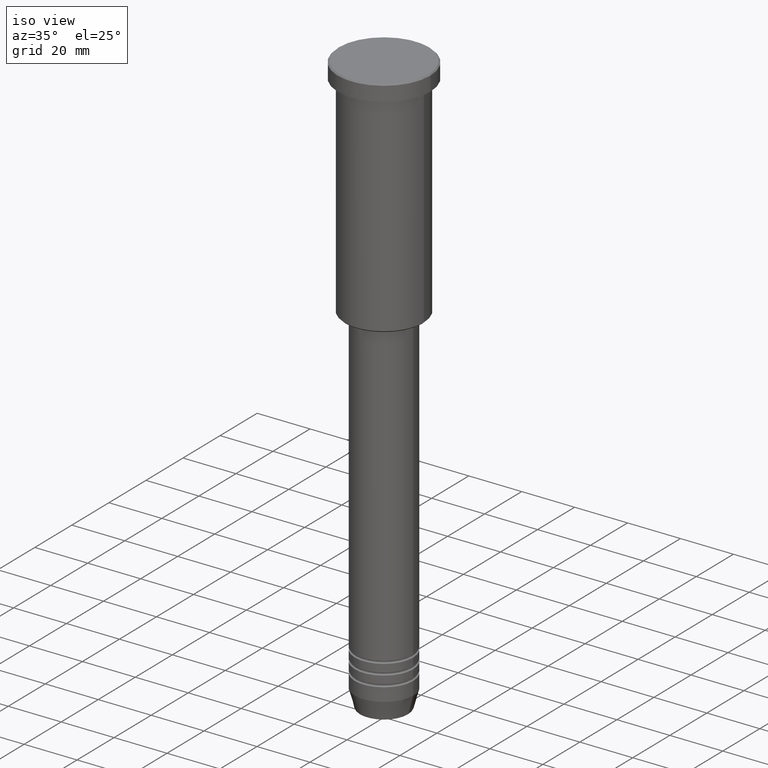
[diagram: clean part render]
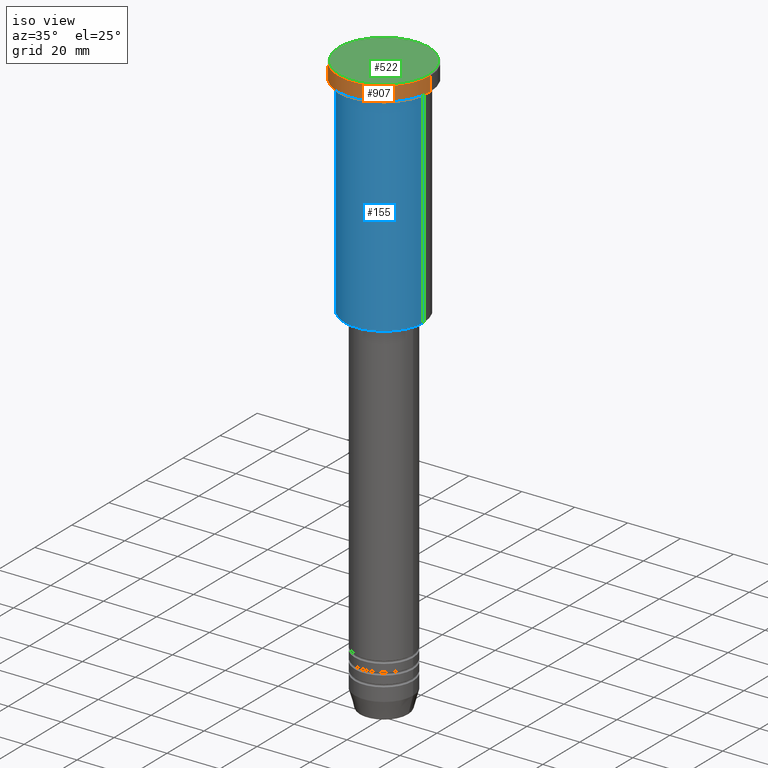
[diagram: same view with three faces highlighted in distinct colors, each labeled with its STEP entity id]
A machine part, iso view with three faces highlighted in distinct colors.
Their STEP definitions:

[orange] entity #907 — the highlighted cylindrical surface (partial cylindrical patch) has radius 17.5 mm, axis along (-0, -0, 1).
#3 = DIRECTION ( 'NONE',  ( 0.000000000000000000, 0.000000000000000000, -1.000000000000000000 ) ) ;
#40 = ORIENTED_EDGE ( 'NONE', *, *, #167, .T. ) ;
#41 = CARTESIAN_POINT ( 'NONE',  ( 17.50000000000000000, 0.000000000000000000, 0.000000000000000000 ) ) ;
#64 = CARTESIAN_POINT ( 'NONE',  ( 0.000000000000000000, 0.000000000000000000, -0.5000000000000280886 ) ) ;
#70 = FACE_OUTER_BOUND ( 'NONE', #229, .T. ) ;
#77 = DIRECTION ( 'NONE',  ( -0.000000000000000000, -0.000000000000000000, 1.000000000000000000 ) ) ;
#163 = DIRECTION ( 'NONE',  ( 1.000000000000000000, 0.000000000000000000, 0.000000000000000000 ) ) ;
#167 = EDGE_CURVE ( 'NONE', #422, #358, #501, .T. ) ;
#173 = CARTESIAN_POINT ( 'NONE',  ( -17.50000000000000000, 2.143131898507868248E-15, 0.000000000000000000 ) ) ;
#209 = CARTESIAN_POINT ( 'NONE',  ( -17.50000000000000000, 2.143131898507868248E-15, -5.999999999999995559 ) ) ;
#229 = EDGE_LOOP ( 'NONE', ( #1045, #681, #40, #406 ) ) ;
#336 = CIRCLE ( 'NONE', #1120, 17.50000000000000000 ) ;
#358 = VERTEX_POINT ( 'NONE', #521 ) ;
#375 = VERTEX_POINT ( 'NONE', #997 ) ;
#406 = ORIENTED_EDGE ( 'NONE', *, *, #448, .T. ) ;
#422 = VERTEX_POINT ( 'NONE', #1003 ) ;
#425 = EDGE_CURVE ( 'NONE', #1161, #375, #720, .T. ) ;
#447 = CARTESIAN_POINT ( 'NONE',  ( 0.000000000000000000, 0.000000000000000000, 0.000000000000000000 ) ) ;
#448 = EDGE_CURVE ( 'NONE', #358, #375, #336, .T. ) ;
#496 = DIRECTION ( 'NONE',  ( -0.000000000000000000, -0.000000000000000000, 1.000000000000000000 ) ) ;
#500 = DIRECTION ( 'NONE',  ( -0.000000000000000000, -0.000000000000000000, 1.000000000000000000 ) ) ;
#501 = LINE ( 'NONE', #41, #911 ) ;
#521 = CARTESIAN_POINT ( 'NONE',  ( 17.50000000000000000, 0.000000000000000000, -0.5000000000000280886 ) ) ;
#528 = AXIS2_PLACEMENT_3D ( 'NONE', #447, #707, #623 ) ;
#623 = DIRECTION ( 'NONE',  ( 1.000000000000000000, 0.000000000000000000, 0.000000000000000000 ) ) ;
#650 = AXIS2_PLACEMENT_3D ( 'NONE', #1051, #500, #1131 ) ;
#681 = ORIENTED_EDGE ( 'NONE', *, *, #719, .T. ) ;
#707 = DIRECTION ( 'NONE',  ( -0.000000000000000000, -0.000000000000000000, 1.000000000000000000 ) ) ;
#719 = EDGE_CURVE ( 'NONE', #1161, #422, #1028, .T. ) ;
#720 = LINE ( 'NONE', #173, #1171 ) ;
#907 = ADVANCED_FACE ( 'NONE', ( #70 ), #1167, .T. ) ;
#911 = VECTOR ( 'NONE', #496, 1000.000000000000000 ) ;
#997 = CARTESIAN_POINT ( 'NONE',  ( -17.50000000000000000, 2.143131898507868248E-15, -0.5000000000000280886 ) ) ;
#1003 = CARTESIAN_POINT ( 'NONE',  ( 17.50000000000000000, 0.000000000000000000, -5.999999999999995559 ) ) ;
#1028 = CIRCLE ( 'NONE', #650, 17.50000000000000000 ) ;
#1045 = ORIENTED_EDGE ( 'NONE', *, *, #425, .F. ) ;
#1051 = CARTESIAN_POINT ( 'NONE',  ( 0.000000000000000000, 0.000000000000000000, -5.999999999999995559 ) ) ;
#1120 = AXIS2_PLACEMENT_3D ( 'NONE', #64, #3, #163 ) ;
#1131 = DIRECTION ( 'NONE',  ( 1.000000000000000000, 0.000000000000000000, 0.000000000000000000 ) ) ;
#1161 = VERTEX_POINT ( 'NONE', #209 ) ;
#1167 = CYLINDRICAL_SURFACE ( 'NONE', #528, 17.50000000000000000 ) ;
#1171 = VECTOR ( 'NONE', #77, 1000.000000000000000 ) ;

[blue] entity #155 — the highlighted cylindrical surface (partial cylindrical patch) has radius 15 mm, axis along (-0, -0, 1).
#13 = AXIS2_PLACEMENT_3D ( 'NONE', #399, #193, #660 ) ;
#35 = AXIS2_PLACEMENT_3D ( 'NONE', #202, #567, #751 ) ;
#93 = DIRECTION ( 'NONE',  ( -0.000000000000000000, -0.000000000000000000, 1.000000000000000000 ) ) ;
#110 = VERTEX_POINT ( 'NONE', #844 ) ;
#127 = CARTESIAN_POINT ( 'NONE',  ( 0.000000000000000000, 0.000000000000000000, 0.000000000000000000 ) ) ;
#136 = CIRCLE ( 'NONE', #35, 15.00000000000000000 ) ;
#139 = CIRCLE ( 'NONE', #13, 15.00000000000000000 ) ;
#145 = EDGE_LOOP ( 'NONE', ( #166, #1000, #921, #915 ) ) ;
#155 = ADVANCED_FACE ( 'NONE', ( #957 ), #760, .T. ) ;
#166 = ORIENTED_EDGE ( 'NONE', *, *, #343, .F. ) ;
#171 = CARTESIAN_POINT ( 'NONE',  ( -15.00000000000000000, 1.836970198721029589E-15, -85.50000000000005684 ) ) ;
#178 = VECTOR ( 'NONE', #292, 1000.000000000000000 ) ;
#193 = DIRECTION ( 'NONE',  ( -0.000000000000000000, -0.000000000000000000, 1.000000000000000000 ) ) ;
#202 = CARTESIAN_POINT ( 'NONE',  ( 0.000000000000000000, 0.000000000000000000, -6.999999999999995559 ) ) ;
#216 = CARTESIAN_POINT ( 'NONE',  ( 15.00000000000000000, 0.000000000000000000, -85.50000000000005684 ) ) ;
#230 = DIRECTION ( 'NONE',  ( 1.000000000000000000, 0.000000000000000000, 0.000000000000000000 ) ) ;
#273 = AXIS2_PLACEMENT_3D ( 'NONE', #127, #1132, #230 ) ;
#292 = DIRECTION ( 'NONE',  ( -0.000000000000000000, -0.000000000000000000, 1.000000000000000000 ) ) ;
#343 = EDGE_CURVE ( 'NONE', #1070, #1127, #977, .T. ) ;
#350 = EDGE_CURVE ( 'NONE', #1127, #110, #136, .T. ) ;
#370 = CARTESIAN_POINT ( 'NONE',  ( 15.00000000000000000, 0.000000000000000000, 0.000000000000000000 ) ) ;
#399 = CARTESIAN_POINT ( 'NONE',  ( 0.000000000000000000, 0.000000000000000000, -85.50000000000005684 ) ) ;
#429 = VECTOR ( 'NONE', #93, 1000.000000000000000 ) ;
#523 = VERTEX_POINT ( 'NONE', #216 ) ;
#567 = DIRECTION ( 'NONE',  ( -0.000000000000000000, -0.000000000000000000, 1.000000000000000000 ) ) ;
#652 = EDGE_CURVE ( 'NONE', #523, #110, #733, .T. ) ;
#660 = DIRECTION ( 'NONE',  ( -1.000000000000000000, 0.000000000000000000, 0.000000000000000000 ) ) ;
#733 = LINE ( 'NONE', #370, #429 ) ;
#747 = CARTESIAN_POINT ( 'NONE',  ( -15.00000000000000000, 1.836970198721029589E-15, -6.999999999999995559 ) ) ;
#751 = DIRECTION ( 'NONE',  ( 1.000000000000000000, 0.000000000000000000, 0.000000000000000000 ) ) ;
#760 = CYLINDRICAL_SURFACE ( 'NONE', #273, 15.00000000000000000 ) ;
#841 = CARTESIAN_POINT ( 'NONE',  ( -15.00000000000000000, 1.836970198721029589E-15, 0.000000000000000000 ) ) ;
#844 = CARTESIAN_POINT ( 'NONE',  ( 15.00000000000000000, 0.000000000000000000, -6.999999999999995559 ) ) ;
#915 = ORIENTED_EDGE ( 'NONE', *, *, #350, .F. ) ;
#921 = ORIENTED_EDGE ( 'NONE', *, *, #652, .T. ) ;
#957 = FACE_OUTER_BOUND ( 'NONE', #145, .T. ) ;
#977 = LINE ( 'NONE', #841, #178 ) ;
#1000 = ORIENTED_EDGE ( 'NONE', *, *, #1025, .T. ) ;
#1025 = EDGE_CURVE ( 'NONE', #1070, #523, #139, .T. ) ;
#1070 = VERTEX_POINT ( 'NONE', #171 ) ;
#1127 = VERTEX_POINT ( 'NONE', #747 ) ;
#1132 = DIRECTION ( 'NONE',  ( -0.000000000000000000, -0.000000000000000000, 1.000000000000000000 ) ) ;

[green] entity #522 — the highlighted planar face has unit normal (0, -0, 1).
#9 = CIRCLE ( 'NONE', #753, 16.99999999999998579 ) ;
#183 = AXIS2_PLACEMENT_3D ( 'NONE', #1147, #331, #392 ) ;
#194 = VERTEX_POINT ( 'NONE', #948 ) ;
#204 = CARTESIAN_POINT ( 'NONE',  ( 0.000000000000000000, 0.000000000000000000, 0.000000000000000000 ) ) ;
#217 = EDGE_CURVE ( 'NONE', #194, #642, #9, .T. ) ;
#301 = DIRECTION ( 'NONE',  ( 0.000000000000000000, -0.000000000000000000, 1.000000000000000000 ) ) ;
#307 = EDGE_CURVE ( 'NONE', #642, #194, #596, .T. ) ;
#317 = FACE_OUTER_BOUND ( 'NONE', #926, .T. ) ;
#331 = DIRECTION ( 'NONE',  ( -0.000000000000000000, -0.000000000000000000, 1.000000000000000000 ) ) ;
#379 = AXIS2_PLACEMENT_3D ( 'NONE', #764, #301, #667 ) ;
#392 = DIRECTION ( 'NONE',  ( 1.000000000000000000, 0.000000000000000000, 0.000000000000000000 ) ) ;
#522 = ADVANCED_FACE ( 'NONE', ( #317 ), #1043, .T. ) ;
#596 = CIRCLE ( 'NONE', #183, 16.99999999999998579 ) ;
#630 = ORIENTED_EDGE ( 'NONE', *, *, #217, .T. ) ;
#642 = VERTEX_POINT ( 'NONE', #1012 ) ;
#667 = DIRECTION ( 'NONE',  ( 1.000000000000000000, 0.000000000000000000, 0.000000000000000000 ) ) ;
#753 = AXIS2_PLACEMENT_3D ( 'NONE', #204, #755, #940 ) ;
#755 = DIRECTION ( 'NONE',  ( -0.000000000000000000, -0.000000000000000000, 1.000000000000000000 ) ) ;
#764 = CARTESIAN_POINT ( 'NONE',  ( 0.000000000000000000, 0.000000000000000000, 0.000000000000000000 ) ) ;
#881 = ORIENTED_EDGE ( 'NONE', *, *, #307, .T. ) ;
#926 = EDGE_LOOP ( 'NONE', ( #881, #630 ) ) ;
#940 = DIRECTION ( 'NONE',  ( 1.000000000000000000, 0.000000000000000000, 0.000000000000000000 ) ) ;
#948 = CARTESIAN_POINT ( 'NONE',  ( 16.99999999999998579, 2.112515728529183278E-15, 0.000000000000000000 ) ) ;
#1012 = CARTESIAN_POINT ( 'NONE',  ( -16.99999999999998579, 0.000000000000000000, 0.000000000000000000 ) ) ;
#1043 = PLANE ( 'NONE',  #379 ) ;
#1147 = CARTESIAN_POINT ( 'NONE',  ( 0.000000000000000000, 0.000000000000000000, 0.000000000000000000 ) ) ;